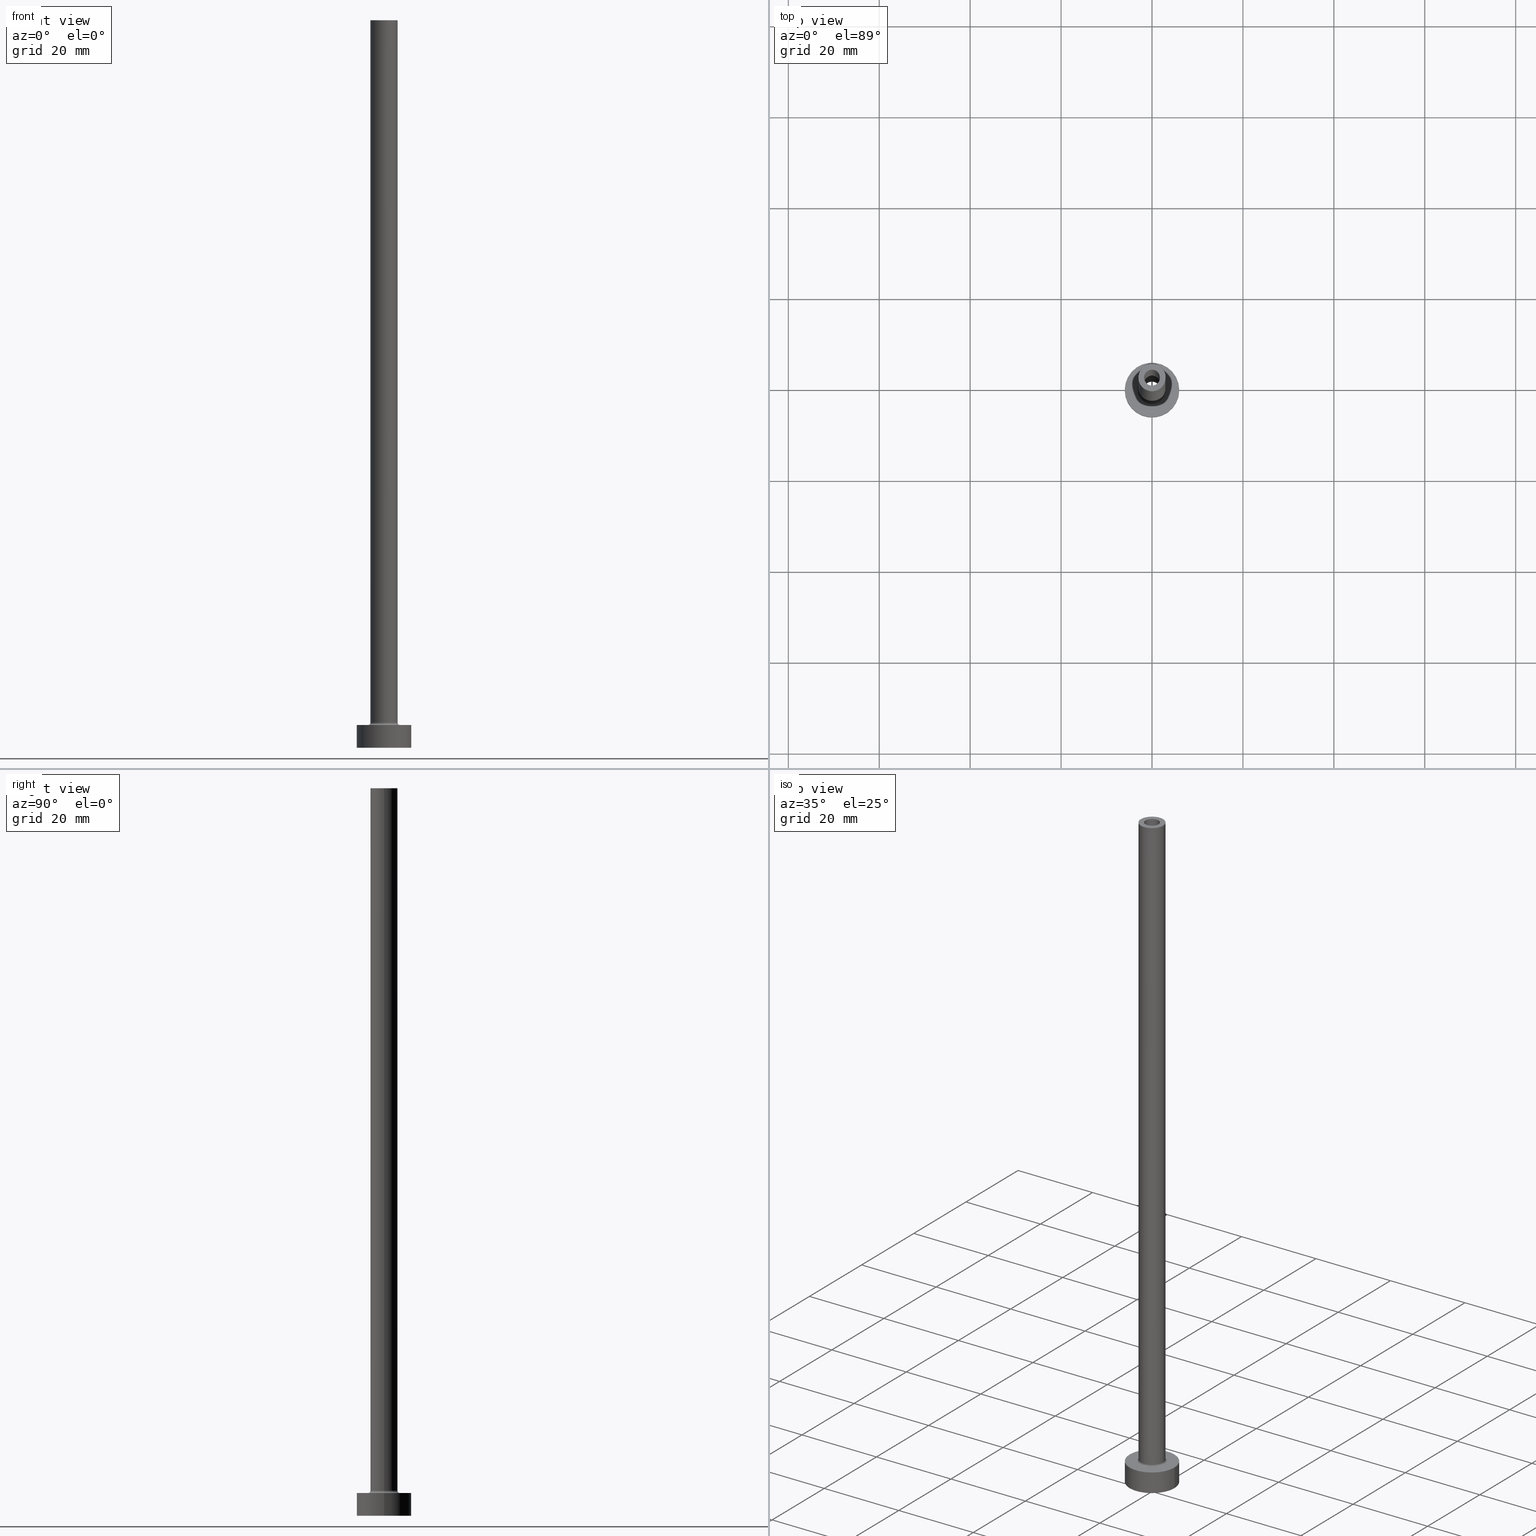
[diagram: canonical four-view strip — front | top / right | iso, engineering-drawing reading convention]
A machine part, canonical four-view strip (front | top / right | iso — engineering-drawing reading convention). The complete STEP part file that produces these views, byte-faithful:
ISO-10303-21;
HEADER;
FILE_DESCRIPTION (( 'STEP AP203' ),
    '1' );
FILE_NAME ('458b.STEP',
    '2023-02-13T17:51:36',
    ( '' ),
    ( '' ),
    'SwSTEP 2.0',
    'SolidWorks 2019',
    '' );
FILE_SCHEMA (( 'CONFIG_CONTROL_DESIGN' ));
ENDSEC;

DATA;
#1 = AXIS2_PLACEMENT_3D ( 'NONE', #309, #236, #19 ) ;
#2 = VERTEX_POINT ( 'NONE', #216 ) ;
#3 = CARTESIAN_POINT ( 'NONE',  ( -3.500000000000000444, 4.286263797015737088E-16, 5.500000000000005329 ) ) ;
#4 = EDGE_CURVE ( 'NONE', #240, #394, #8, .T. ) ;
#5 = DATE_TIME_ROLE ( 'creation_date' ) ;
#6 = DIRECTION ( 'NONE',  ( 0.000000000000000000, 0.000000000000000000, -1.000000000000000000 ) ) ;
#7 = CALENDAR_DATE ( 2023, 13, 2 ) ;
#8 = LINE ( 'NONE', #220, #386 ) ;
#9 = AXIS2_PLACEMENT_3D ( 'NONE', #444, #271, #241 ) ;
#10 = EDGE_CURVE ( 'NONE', #198, #45, #434, .T. ) ;
#11 = DATE_AND_TIME ( #429, #291 ) ;
#12 = CARTESIAN_POINT ( 'NONE',  ( 0.000000000000000000, 0.000000000000000000, 0.000000000000000000 ) ) ;
#13 = DIRECTION ( 'NONE',  ( -0.000000000000000000, -0.000000000000000000, -1.000000000000000000 ) ) ;
#14 = FACE_OUTER_BOUND ( 'NONE', #440, .T. ) ;
#15 = PRODUCT_DEFINITION_SHAPE ( 'NONE', 'NONE',  #420 ) ;
#16 = DIRECTION ( 'NONE',  ( 0.000000000000000000, 0.000000000000000000, 1.000000000000000000 ) ) ;
#17 = ORIENTED_EDGE ( 'NONE', *, *, #49, .F. ) ;
#18 = ADVANCED_FACE ( 'NONE', ( #329 ), #262, .T. ) ;
#19 = DIRECTION ( 'NONE',  ( 1.000000000000000000, 0.000000000000000000, -0.000000000000000000 ) ) ;
#20 = ORIENTED_EDGE ( 'NONE', *, *, #245, .F. ) ;
#21 = FACE_OUTER_BOUND ( 'NONE', #149, .T. ) ;
#22 = AXIS2_PLACEMENT_3D ( 'NONE', #409, #85, #50 ) ;
#23 = VERTEX_POINT ( 'NONE', #334 ) ;
#24 = EDGE_CURVE ( 'NONE', #2, #69, #443, .T. ) ;
#25 = DIRECTION ( 'NONE',  ( -1.000000000000000000, 0.000000000000000000, 0.000000000000000000 ) ) ;
#26 =( LENGTH_UNIT ( ) NAMED_UNIT ( * ) SI_UNIT ( .MILLI., .METRE. ) );
#27 = PRODUCT_RELATED_PRODUCT_CATEGORY ( 'detail', '', ( #124 ) ) ;
#28 = CARTESIAN_POINT ( 'NONE',  ( 3.500000000000000444, 0.000000000000000000, 5.500000000000005329 ) ) ;
#29 = CIRCLE ( 'NONE', #244, 1.750000000000000000 ) ;
#30 = DESIGN_CONTEXT ( 'detailed design', #80, 'design' ) ;
#31 = CARTESIAN_POINT ( 'NONE',  ( 0.000000000000000000, 0.000000000000000000, 5.000000000000000000 ) ) ;
#32 = ORIENTED_EDGE ( 'NONE', *, *, #264, .F. ) ;
#33 = CARTESIAN_POINT ( 'NONE',  ( -1.750000000000000000, 0.000000000000000000, 160.0000000000000000 ) ) ;
#34 = VERTEX_POINT ( 'NONE', #41 ) ;
#35 = CIRCLE ( 'NONE', #428, 6.000000000000000888 ) ;
#36 = DIRECTION ( 'NONE',  ( 0.000000000000000000, -1.000000000000000000, 0.000000000000000000 ) ) ;
#37 = APPROVAL ( #398, 'NEUR�EN�' ) ;
#38 = ORIENTED_EDGE ( 'NONE', *, *, #173, .F. ) ;
#39 = SHAPE_DEFINITION_REPRESENTATION ( #15, #131 ) ;
#40 = CIRCLE ( 'NONE', #107, 1.750000000000000000 ) ;
#41 = CARTESIAN_POINT ( 'NONE',  ( -1.750000000000000000, 0.000000000000000000, 115.0000000000000000 ) ) ;
#42 = PERSON_AND_ORGANIZATION ( #180, #123 ) ;
#43 = DIRECTION ( 'NONE',  ( 1.000000000000000000, 0.000000000000000000, 0.000000000000000000 ) ) ;
#44 = PERSON_AND_ORGANIZATION ( #180, #123 ) ;
#45 = VERTEX_POINT ( 'NONE', #402 ) ;
#46 = APPROVAL_ROLE ( '' ) ;
#47 = DIRECTION ( 'NONE',  ( -1.000000000000000000, 1.224646799147354440E-16, 0.000000000000000000 ) ) ;
#48 = DIRECTION ( 'NONE',  ( -0.000000000000000000, -0.000000000000000000, -1.000000000000000000 ) ) ;
#49 = EDGE_CURVE ( 'NONE', #282, #198, #302, .T. ) ;
#50 = DIRECTION ( 'NONE',  ( 1.000000000000000000, 0.000000000000000000, 0.000000000000000000 ) ) ;
#51 = DIRECTION ( 'NONE',  ( 1.000000000000000000, 0.000000000000000000, 0.000000000000000000 ) ) ;
#52 = AXIS2_PLACEMENT_3D ( 'NONE', #31, #319, #171 ) ;
#53 = DIRECTION ( 'NONE',  ( 1.000000000000000000, 0.000000000000000000, 0.000000000000000000 ) ) ;
#54 = VERTEX_POINT ( 'NONE', #287 ) ;
#55 = DIRECTION ( 'NONE',  ( 0.000000000000000000, 0.000000000000000000, 1.000000000000000000 ) ) ;
#56 = EDGE_CURVE ( 'NONE', #394, #413, #87, .T. ) ;
#57 = ORIENTED_EDGE ( 'NONE', *, *, #274, .T. ) ;
#58 = FACE_OUTER_BOUND ( 'NONE', #284, .T. ) ;
#59 = AXIS2_PLACEMENT_3D ( 'NONE', #299, #337, #51 ) ;
#60 = DIRECTION ( 'NONE',  ( -1.000000000000000000, 0.000000000000000000, 0.000000000000000000 ) ) ;
#61 = FACE_OUTER_BOUND ( 'NONE', #461, .T. ) ;
#62 = FACE_BOUND ( 'NONE', #209, .T. ) ;
#63 = EDGE_LOOP ( 'NONE', ( #17, #32, #365, #233 ) ) ;
#64 = AXIS2_PLACEMENT_3D ( 'NONE', #424, #322, #417 ) ;
#65 = AXIS2_PLACEMENT_3D ( 'NONE', #288, #360, #185 ) ;
#66 = DIRECTION ( 'NONE',  ( 0.000000000000000000, 0.000000000000000000, -1.000000000000000000 ) ) ;
#67 = ORIENTED_EDGE ( 'NONE', *, *, #184, .F. ) ;
#68 = CYLINDRICAL_SURFACE ( 'NONE', #367, 1.899999999999999911 ) ;
#69 = VERTEX_POINT ( 'NONE', #397 ) ;
#70 = EDGE_CURVE ( 'NONE', #69, #54, #155, .T. ) ;
#71 = APPROVAL_DATE_TIME ( #404, #438 ) ;
#72 = FACE_OUTER_BOUND ( 'NONE', #135, .T. ) ;
#73 = APPROVAL_ROLE ( '' ) ;
#74 = AXIS2_PLACEMENT_3D ( 'NONE', #355, #246, #387 ) ;
#75 = EDGE_LOOP ( 'NONE', ( #343, #175, #89, #373 ) ) ;
#76 = PERSON_AND_ORGANIZATION_ROLE ( 'design_supplier' ) ;
#77 = LINE ( 'NONE', #407, #298 ) ;
#78 = AXIS2_PLACEMENT_3D ( 'NONE', #153, #430, #43 ) ;
#79 = APPROVAL_STATUS ( 'not_yet_approved' ) ;
#80 = APPLICATION_CONTEXT ( 'configuration controlled 3d designs of mechanical parts and assemblies' ) ;
#81 = ADVANCED_FACE ( 'NONE', ( #72 ), #225, .F. ) ;
#82 = ORIENTED_EDGE ( 'NONE', *, *, #230, .F. ) ;
#83 = CIRCLE ( 'NONE', #202, 1.750000000000000000 ) ;
#84 = DIRECTION ( 'NONE',  ( -0.000000000000000000, -0.000000000000000000, -1.000000000000000000 ) ) ;
#85 = DIRECTION ( 'NONE',  ( 0.000000000000000000, 0.000000000000000000, 1.000000000000000000 ) ) ;
#86 = ADVANCED_FACE ( 'NONE', ( #433 ), #328, .F. ) ;
#87 = CIRCLE ( 'NONE', #78, 1.899999999999999911 ) ;
#88 = PLANE ( 'NONE',  #100 ) ;
#89 = ORIENTED_EDGE ( 'NONE', *, *, #350, .T. ) ;
#90 = FACE_BOUND ( 'NONE', #172, .T. ) ;
#91 = AXIS2_PLACEMENT_3D ( 'NONE', #161, #301, #411 ) ;
#92 = LOCAL_TIME ( 18, 51, 36.00000000000000000, #181 ) ;
#93 = CC_DESIGN_PERSON_AND_ORGANIZATION_ASSIGNMENT ( #332, #215, ( #448 ) ) ;
#94 = CYLINDRICAL_SURFACE ( 'NONE', #250, 3.000000000000000444 ) ;
#95 = ORIENTED_EDGE ( 'NONE', *, *, #205, .F. ) ;
#96 = CARTESIAN_POINT ( 'NONE',  ( 6.000000000000000888, 7.347880794884120722E-16, 0.000000000000000000 ) ) ;
#97 = EDGE_CURVE ( 'NONE', #200, #133, #35, .T. ) ;
#98 = ORIENTED_EDGE ( 'NONE', *, *, #310, .T. ) ;
#99 = FACE_BOUND ( 'NONE', #446, .T. ) ;
#100 = AXIS2_PLACEMENT_3D ( 'NONE', #335, #269, #159 ) ;
#101 = LINE ( 'NONE', #33, #158 ) ;
#102 = DIRECTION ( 'NONE',  ( -1.000000000000000000, 0.000000000000000000, 0.000000000000000000 ) ) ;
#103 = EDGE_CURVE ( 'NONE', #2, #282, #431, .T. ) ;
#104 = FACE_OUTER_BOUND ( 'NONE', #305, .T. ) ;
#105 = ORIENTED_EDGE ( 'NONE', *, *, #144, .F. ) ;
#106 = CIRCLE ( 'NONE', #9, 6.000000000000000888 ) ;
#107 = AXIS2_PLACEMENT_3D ( 'NONE', #378, #414, #304 ) ;
#108 = LINE ( 'NONE', #247, #366 ) ;
#109 = ORIENTED_EDGE ( 'NONE', *, *, #264, .T. ) ;
#110 = APPLICATION_PROTOCOL_DEFINITION ( 'international standard', 'config_control_design', 1994, #330 ) ;
#111 = ORIENTED_EDGE ( 'NONE', *, *, #191, .T. ) ;
#112 = EDGE_CURVE ( 'NONE', #356, #133, #77, .T. ) ;
#113 = PERSON_AND_ORGANIZATION ( #180, #123 ) ;
#114 = DIRECTION ( 'NONE',  ( 0.000000000000000000, 0.000000000000000000, -1.000000000000000000 ) ) ;
#115 = MECHANICAL_CONTEXT ( 'NONE', #330, 'mechanical' ) ;
#116 = CIRCLE ( 'NONE', #324, 1.899999999999999911 ) ;
#117 = CARTESIAN_POINT ( 'NONE',  ( 0.000000000000000000, 0.000000000000000000, 120.3740115370177648 ) ) ;
#118 = DATE_AND_TIME ( #148, #383 ) ;
#119 = CARTESIAN_POINT ( 'NONE',  ( 0.000000000000000000, 0.000000000000000000, 160.0000000000000000 ) ) ;
#120 = CARTESIAN_POINT ( 'NONE',  ( 6.000000000000000888, 7.347880794884120722E-16, 5.000000000000000000 ) ) ;
#121 = VECTOR ( 'NONE', #48, 1000.000000000000000 ) ;
#122 = DIRECTION ( 'NONE',  ( 1.224646799147353207E-16, 1.000000000000000000, -0.000000000000000000 ) ) ;
#123 = ORGANIZATION ( 'NEUR�EN�', 'NEUR�EN�', '' ) ;
#124 = PRODUCT ( '458b', '458b', '', ( #115 ) ) ;
#125 = DIRECTION ( 'NONE',  ( 1.000000000000000000, 0.000000000000000000, 0.000000000000000000 ) ) ;
#126 = ADVANCED_FACE ( 'NONE', ( #363 ), #235, .F. ) ;
#127 = AXIS2_PLACEMENT_3D ( 'NONE', #151, #13, #192 ) ;
#128 = CARTESIAN_POINT ( 'NONE',  ( 0.000000000000000000, 0.000000000000000000, 115.0000000000000000 ) ) ;
#129 = EDGE_CURVE ( 'NONE', #213, #200, #326, .T. ) ;
#130 = CARTESIAN_POINT ( 'NONE',  ( 0.000000000000000000, 0.000000000000000000, 160.0000000000000000 ) ) ;
#131 = ADVANCED_BREP_SHAPE_REPRESENTATION ( '458b', ( #221, #65 ), #314 ) ;
#132 = CIRCLE ( 'NONE', #359, 1.899999999999999911 ) ;
#133 = VERTEX_POINT ( 'NONE', #199 ) ;
#134 = CARTESIAN_POINT ( 'NONE',  ( 0.000000000000000000, 0.000000000000000000, 160.0000000000000000 ) ) ;
#135 = EDGE_LOOP ( 'NONE', ( #333, #303, #223, #352 ) ) ;
#136 = CARTESIAN_POINT ( 'NONE',  ( -6.000000000000000888, 0.000000000000000000, 5.000000000000000000 ) ) ;
#137 = ADVANCED_FACE ( 'NONE', ( #410 ), #94, .T. ) ;
#138 = CARTESIAN_POINT ( 'NONE',  ( 0.000000000000000000, 0.000000000000000000, 5.000000000000000000 ) ) ;
#139 = AXIS2_PLACEMENT_3D ( 'NONE', #228, #369, #179 ) ;
#140 = DIRECTION ( 'NONE',  ( 1.000000000000000000, 0.000000000000000000, 0.000000000000000000 ) ) ;
#141 = EDGE_CURVE ( 'NONE', #413, #394, #116, .T. ) ;
#142 = AXIS2_PLACEMENT_3D ( 'NONE', #117, #263, #293 ) ;
#143 = ORIENTED_EDGE ( 'NONE', *, *, #321, .F. ) ;
#144 = EDGE_CURVE ( 'NONE', #45, #198, #331, .T. ) ;
#145 = CARTESIAN_POINT ( 'NONE',  ( -1.899999999999999911, 0.000000000000000000, 115.0000000000000000 ) ) ;
#146 = ORIENTED_EDGE ( 'NONE', *, *, #129, .T. ) ;
#147 = TOROIDAL_SURFACE ( 'NONE', #408, 3.500000000000000444, 0.5000000000000000000 ) ;
#148 = CALENDAR_DATE ( 2023, 13, 2 ) ;
#149 = EDGE_LOOP ( 'NONE', ( #379, #300, #249, #237 ) ) ;
#150 = PERSON_AND_ORGANIZATION_ROLE ( 'creator' ) ;
#151 = CARTESIAN_POINT ( 'NONE',  ( 0.000000000000000000, 0.000000000000000000, 5.000000000000000000 ) ) ;
#152 =( NAMED_UNIT ( * ) SI_UNIT ( $, .STERADIAN. ) SOLID_ANGLE_UNIT ( ) );
#153 = CARTESIAN_POINT ( 'NONE',  ( 0.000000000000000000, 0.000000000000000000, 0.000000000000000000 ) ) ;
#154 = APPROVAL_DATE_TIME ( #401, #405 ) ;
#155 = LINE ( 'NONE', #256, #239 ) ;
#156 = ORIENTED_EDGE ( 'NONE', *, *, #230, .T. ) ;
#157 = CARTESIAN_POINT ( 'NONE',  ( 0.000000000000000000, 0.000000000000000000, 160.0000000000000000 ) ) ;
#158 = VECTOR ( 'NONE', #311, 1000.000000000000000 ) ;
#159 = DIRECTION ( 'NONE',  ( 1.000000000000000000, 0.000000000000000000, -0.000000000000000000 ) ) ;
#160 = ORIENTED_EDGE ( 'NONE', *, *, #112, .F. ) ;
#161 = CARTESIAN_POINT ( 'NONE',  ( 0.000000000000000000, 0.000000000000000000, 5.000000000000000000 ) ) ;
#162 = EDGE_LOOP ( 'NONE', ( #177, #280, #423, #377 ) ) ;
#163 = CARTESIAN_POINT ( 'NONE',  ( -3.000000000000000444, 0.000000000000000000, 5.500000000000005329 ) ) ;
#164 = ORIENTED_EDGE ( 'NONE', *, *, #70, .T. ) ;
#165 = CARTESIAN_POINT ( 'NONE',  ( 6.000000000000000888, 7.347880794884120722E-16, 5.000000000000000000 ) ) ;
#166 = APPROVAL_PERSON_ORGANIZATION ( #113, #37, #73 ) ;
#167 = APPROVAL_PERSON_ORGANIZATION ( #44, #405, #46 ) ;
#168 = VERTEX_POINT ( 'NONE', #340 ) ;
#169 = PLANE ( 'NONE',  #1 ) ;
#170 = LOCAL_TIME ( 18, 51, 36.00000000000000000, #362 ) ;
#171 = DIRECTION ( 'NONE',  ( 1.000000000000000000, 0.000000000000000000, -0.000000000000000000 ) ) ;
#172 = EDGE_LOOP ( 'NONE', ( #67, #38 ) ) ;
#173 = EDGE_CURVE ( 'NONE', #23, #168, #40, .T. ) ;
#174 = DIRECTION ( 'NONE',  ( 0.000000000000000000, 0.000000000000000000, -1.000000000000000000 ) ) ;
#175 = ORIENTED_EDGE ( 'NONE', *, *, #245, .T. ) ;
#176 = DIRECTION ( 'NONE',  ( 1.000000000000000000, 0.000000000000000000, 0.000000000000000000 ) ) ;
#177 = ORIENTED_EDGE ( 'NONE', *, *, #129, .F. ) ;
#178 = CIRCLE ( 'NONE', #374, 3.000000000000000444 ) ;
#179 = DIRECTION ( 'NONE',  ( 1.000000000000000000, 0.000000000000000000, 0.000000000000000000 ) ) ;
#180 = PERSON ( 'NEUR�EN�', 'NEUR�EN�', 'NEUR�EN�', ('NEUR�EN�'), ('NEUR�EN�'), ('NEUR�EN�') ) ;
#181 = COORDINATED_UNIVERSAL_TIME_OFFSET ( 1, 0, .AHEAD. ) ;
#182 = AXIS2_PLACEMENT_3D ( 'NONE', #157, #297, #361 ) ;
#183 = DIRECTION ( 'NONE',  ( -0.000000000000000000, -0.000000000000000000, -1.000000000000000000 ) ) ;
#184 = EDGE_CURVE ( 'NONE', #168, #23, #83, .T. ) ;
#185 = DIRECTION ( 'NONE',  ( 1.000000000000000000, 0.000000000000000000, 0.000000000000000000 ) ) ;
#186 = DIRECTION ( 'NONE',  ( 0.000000000000000000, 0.000000000000000000, 1.000000000000000000 ) ) ;
#187 = PERSON_AND_ORGANIZATION_ROLE ( 'design_owner' ) ;
#188 = CIRCLE ( 'NONE', #74, 6.000000000000000888 ) ;
#189 = DIRECTION ( 'NONE',  ( -0.000000000000000000, -0.000000000000000000, -1.000000000000000000 ) ) ;
#190 = ORIENTED_EDGE ( 'NONE', *, *, #173, .T. ) ;
#191 = EDGE_CURVE ( 'NONE', #69, #2, #400, .T. ) ;
#192 = DIRECTION ( 'NONE',  ( 1.000000000000000000, 0.000000000000000000, 0.000000000000000000 ) ) ;
#193 = CLOSED_SHELL ( 'NONE', ( #204, #81, #403, #18, #415, #285, #435, #296, #137, #218, #126, #460, #258, #86 ) ) ;
#194 = FACE_BOUND ( 'NONE', #357, .T. ) ;
#195 = DIRECTION ( 'NONE',  ( 1.000000000000000000, 0.000000000000000000, 0.000000000000000000 ) ) ;
#196 = ORIENTED_EDGE ( 'NONE', *, *, #10, .T. ) ;
#197 = CARTESIAN_POINT ( 'NONE',  ( 0.000000000000000000, 0.000000000000000000, 0.000000000000000000 ) ) ;
#198 = VERTEX_POINT ( 'NONE', #306 ) ;
#199 = CARTESIAN_POINT ( 'NONE',  ( -6.000000000000000888, 0.000000000000000000, 0.000000000000000000 ) ) ;
#200 = VERTEX_POINT ( 'NONE', #96 ) ;
#201 = DIRECTION ( 'NONE',  ( -0.000000000000000000, -0.000000000000000000, -1.000000000000000000 ) ) ;
#202 = AXIS2_PLACEMENT_3D ( 'NONE', #134, #55, #376 ) ;
#203 = CARTESIAN_POINT ( 'NONE',  ( -1.899999999999999911, 0.000000000000000000, 0.000000000000000000 ) ) ;
#204 = ADVANCED_FACE ( 'NONE', ( #21 ), #370, .F. ) ;
#205 = EDGE_CURVE ( 'NONE', #213, #356, #106, .T. ) ;
#206 = DIRECTION ( 'NONE',  ( 0.000000000000000000, 0.000000000000000000, -1.000000000000000000 ) ) ;
#207 = ORIENTED_EDGE ( 'NONE', *, *, #24, .F. ) ;
#208 = CIRCLE ( 'NONE', #22, 1.899999999999999911 ) ;
#209 = EDGE_LOOP ( 'NONE', ( #316, #272 ) ) ;
#210 = CC_DESIGN_PERSON_AND_ORGANIZATION_ASSIGNMENT ( #42, #150, ( #227 ) ) ;
#211 = AXIS2_PLACEMENT_3D ( 'NONE', #3, #122, #47 ) ;
#212 =( NAMED_UNIT ( * ) PLANE_ANGLE_UNIT ( ) SI_UNIT ( $, .RADIAN. ) );
#213 = VERTEX_POINT ( 'NONE', #165 ) ;
#214 = DATE_AND_TIME ( #317, #92 ) ;
#215 = PERSON_AND_ORGANIZATION_ROLE ( 'classification_officer' ) ;
#216 = CARTESIAN_POINT ( 'NONE',  ( -3.000000000000000444, 0.000000000000000000, 160.0000000000000000 ) ) ;
#217 = AXIS2_PLACEMENT_3D ( 'NONE', #28, #36, #348 ) ;
#218 = ADVANCED_FACE ( 'NONE', ( #90, #58 ), #169, .T. ) ;
#219 = APPLICATION_PROTOCOL_DEFINITION ( 'international standard', 'config_control_design', 1994, #80 ) ;
#220 = CARTESIAN_POINT ( 'NONE',  ( 1.899999999999999911, 2.326828918379971365E-16, 120.3740115370177648 ) ) ;
#221 = MANIFOLD_SOLID_BREP ( 'Odebrat vysunut�m4', #193 ) ;
#222 = PERSON_AND_ORGANIZATION ( #180, #123 ) ;
#223 = ORIENTED_EDGE ( 'NONE', *, *, #56, .T. ) ;
#224 = APPROVAL_STATUS ( 'not_yet_approved' ) ;
#225 = CYLINDRICAL_SURFACE ( 'NONE', #142, 1.899999999999999911 ) ;
#226 = ORIENTED_EDGE ( 'NONE', *, *, #380, .F. ) ;
#227 = PRODUCT_DEFINITION_FORMATION_WITH_SPECIFIED_SOURCE ( 'LIBOVOLN�', '', #124, .NOT_KNOWN. ) ;
#228 = CARTESIAN_POINT ( 'NONE',  ( 0.000000000000000000, 0.000000000000000000, 5.500000000000005329 ) ) ;
#229 = CC_DESIGN_PERSON_AND_ORGANIZATION_ASSIGNMENT ( #259, #187, ( #124 ) ) ;
#230 = EDGE_CURVE ( 'NONE', #282, #54, #178, .T. ) ;
#231 = DIRECTION ( 'NONE',  ( -1.000000000000000000, 0.000000000000000000, 0.000000000000000000 ) ) ;
#232 = VECTOR ( 'NONE', #189, 1000.000000000000000 ) ;
#233 = ORIENTED_EDGE ( 'NONE', *, *, #10, .F. ) ;
#234 = DIRECTION ( 'NONE',  ( 0.000000000000000000, 0.000000000000000000, 1.000000000000000000 ) ) ;
#235 = TOROIDAL_SURFACE ( 'NONE', #139, 3.500000000000000444, 0.5000000000000000000 ) ;
#236 = DIRECTION ( 'NONE',  ( 0.000000000000000000, 0.000000000000000000, 1.000000000000000000 ) ) ;
#237 = ORIENTED_EDGE ( 'NONE', *, *, #338, .F. ) ;
#238 = DIRECTION ( 'NONE',  ( 1.000000000000000000, 0.000000000000000000, 0.000000000000000000 ) ) ;
#239 = VECTOR ( 'NONE', #183, 1000.000000000000000 ) ;
#240 = VERTEX_POINT ( 'NONE', #268 ) ;
#241 = DIRECTION ( 'NONE',  ( 1.000000000000000000, 0.000000000000000000, 0.000000000000000000 ) ) ;
#242 = ORIENTED_EDGE ( 'NONE', *, *, #49, .T. ) ;
#243 = LINE ( 'NONE', #248, #447 ) ;
#244 = AXIS2_PLACEMENT_3D ( 'NONE', #128, #16, #53 ) ;
#245 = EDGE_CURVE ( 'NONE', #240, #371, #208, .T. ) ;
#246 = DIRECTION ( 'NONE',  ( 0.000000000000000000, 0.000000000000000000, 1.000000000000000000 ) ) ;
#247 = CARTESIAN_POINT ( 'NONE',  ( -1.899999999999999911, 0.000000000000000000, 120.3740115370177648 ) ) ;
#248 = CARTESIAN_POINT ( 'NONE',  ( 1.750000000000000000, 2.143131898507867804E-16, 160.0000000000000000 ) ) ;
#249 = ORIENTED_EDGE ( 'NONE', *, *, #274, .F. ) ;
#250 = AXIS2_PLACEMENT_3D ( 'NONE', #449, #201, #231 ) ;
#251 = CC_DESIGN_APPROVAL ( #37, ( #448 ) ) ;
#252 = CARTESIAN_POINT ( 'NONE',  ( 0.000000000000000000, 0.000000000000000000, 5.500000000000005329 ) ) ;
#253 = ORIENTED_EDGE ( 'NONE', *, *, #70, .F. ) ;
#254 = PERSON_AND_ORGANIZATION_ROLE ( 'creator' ) ;
#255 = EDGE_LOOP ( 'NONE', ( #95, #146, #399, #160 ) ) ;
#256 = CARTESIAN_POINT ( 'NONE',  ( 3.000000000000000444, 3.673940397442060361E-16, 160.0000000000000000 ) ) ;
#257 = AXIS2_PLACEMENT_3D ( 'NONE', #138, #279, #102 ) ;
#258 = ADVANCED_FACE ( 'NONE', ( #194, #14 ), #88, .F. ) ;
#259 = PERSON_AND_ORGANIZATION ( #180, #123 ) ;
#260 = CARTESIAN_POINT ( 'NONE',  ( -3.000000000000000444, 0.000000000000000000, 160.0000000000000000 ) ) ;
#261 = APPROVAL_ROLE ( '' ) ;
#262 = CYLINDRICAL_SURFACE ( 'NONE', #182, 3.000000000000000444 ) ;
#263 = DIRECTION ( 'NONE',  ( 0.000000000000000000, 0.000000000000000000, -1.000000000000000000 ) ) ;
#264 = EDGE_CURVE ( 'NONE', #54, #282, #439, .T. ) ;
#265 = AXIS2_PLACEMENT_3D ( 'NONE', #281, #421, #351 ) ;
#266 = CC_DESIGN_DATE_AND_TIME_ASSIGNMENT ( #11, #283, ( #448 ) ) ;
#267 = LOCAL_TIME ( 18, 51, 36.00000000000000000, #325 ) ;
#268 = CARTESIAN_POINT ( 'NONE',  ( 1.899999999999999911, 2.326828918379971365E-16, 115.0000000000000000 ) ) ;
#269 = DIRECTION ( 'NONE',  ( 0.000000000000000000, 0.000000000000000000, 1.000000000000000000 ) ) ;
#270 = DIRECTION ( 'NONE',  ( -0.000000000000000000, -0.000000000000000000, -1.000000000000000000 ) ) ;
#271 = DIRECTION ( 'NONE',  ( 0.000000000000000000, 0.000000000000000000, 1.000000000000000000 ) ) ;
#272 = ORIENTED_EDGE ( 'NONE', *, *, #56, .F. ) ;
#273 = DIRECTION ( 'NONE',  ( -0.000000000000000000, -0.000000000000000000, -1.000000000000000000 ) ) ;
#274 = EDGE_CURVE ( 'NONE', #34, #416, #29, .T. ) ;
#275 = ORIENTED_EDGE ( 'NONE', *, *, #24, .T. ) ;
#276 = FACE_OUTER_BOUND ( 'NONE', #255, .T. ) ;
#277 = EDGE_CURVE ( 'NONE', #356, #213, #290, .T. ) ;
#278 = PLANE ( 'NONE',  #64 ) ;
#279 = DIRECTION ( 'NONE',  ( -0.000000000000000000, -0.000000000000000000, -1.000000000000000000 ) ) ;
#280 = ORIENTED_EDGE ( 'NONE', *, *, #277, .F. ) ;
#281 = CARTESIAN_POINT ( 'NONE',  ( 0.000000000000000000, 0.000000000000000000, 5.000000000000000000 ) ) ;
#282 = VERTEX_POINT ( 'NONE', #163 ) ;
#283 = DATE_TIME_ROLE ( 'classification_date' ) ;
#284 = EDGE_LOOP ( 'NONE', ( #275, #111 ) ) ;
#285 = ADVANCED_FACE ( 'NONE', ( #445 ), #412, .T. ) ;
#286 = COORDINATED_UNIVERSAL_TIME_OFFSET ( 1, 0, .AHEAD. ) ;
#287 = CARTESIAN_POINT ( 'NONE',  ( 3.000000000000000444, 3.673940397442060361E-16, 5.500000000000005329 ) ) ;
#288 = CARTESIAN_POINT ( 'NONE',  ( 0.000000000000000000, 0.000000000000000000, 0.000000000000000000 ) ) ;
#289 = DIRECTION ( 'NONE',  ( 1.000000000000000000, 0.000000000000000000, 0.000000000000000000 ) ) ;
#290 = CIRCLE ( 'NONE', #91, 6.000000000000000888 ) ;
#291 = LOCAL_TIME ( 18, 51, 36.00000000000000000, #286 ) ;
#292 = PERSON_AND_ORGANIZATION ( #180, #123 ) ;
#293 = DIRECTION ( 'NONE',  ( -1.000000000000000000, 0.000000000000000000, 0.000000000000000000 ) ) ;
#294 = AXIS2_PLACEMENT_3D ( 'NONE', #119, #6, #436 ) ;
#295 = DIRECTION ( 'NONE',  ( 0.000000000000000000, 0.000000000000000000, 1.000000000000000000 ) ) ;
#296 = ADVANCED_FACE ( 'NONE', ( #62, #390 ), #278, .F. ) ;
#297 = DIRECTION ( 'NONE',  ( -0.000000000000000000, -0.000000000000000000, -1.000000000000000000 ) ) ;
#298 = VECTOR ( 'NONE', #84, 1000.000000000000000 ) ;
#299 = CARTESIAN_POINT ( 'NONE',  ( 0.000000000000000000, 0.000000000000000000, 5.500000000000005329 ) ) ;
#300 = ORIENTED_EDGE ( 'NONE', *, *, #395, .T. ) ;
#301 = DIRECTION ( 'NONE',  ( 0.000000000000000000, 0.000000000000000000, 1.000000000000000000 ) ) ;
#302 = CIRCLE ( 'NONE', #211, 0.4999999999999995559 ) ;
#303 = ORIENTED_EDGE ( 'NONE', *, *, #4, .T. ) ;
#304 = DIRECTION ( 'NONE',  ( 1.000000000000000000, 0.000000000000000000, 0.000000000000000000 ) ) ;
#305 = EDGE_LOOP ( 'NONE', ( #308, #458 ) ) ;
#306 = CARTESIAN_POINT ( 'NONE',  ( -3.500000000000000444, 4.286263797015737088E-16, 5.000000000000002665 ) ) ;
#307 = CC_DESIGN_APPROVAL ( #405, ( #420 ) ) ;
#308 = ORIENTED_EDGE ( 'NONE', *, *, #277, .T. ) ;
#309 = CARTESIAN_POINT ( 'NONE',  ( 0.000000000000000000, 0.000000000000000000, 160.0000000000000000 ) ) ;
#310 = EDGE_CURVE ( 'NONE', #416, #34, #425, .T. ) ;
#311 = DIRECTION ( 'NONE',  ( 0.000000000000000000, 0.000000000000000000, -1.000000000000000000 ) ) ;
#312 = APPROVAL_DATE_TIME ( #214, #37 ) ;
#313 = DIRECTION ( 'NONE',  ( 1.000000000000000000, 0.000000000000000000, 0.000000000000000000 ) ) ;
#314 =( GEOMETRIC_REPRESENTATION_CONTEXT ( 3 ) GLOBAL_UNCERTAINTY_ASSIGNED_CONTEXT ( ( #354 ) ) GLOBAL_UNIT_ASSIGNED_CONTEXT ( ( #26, #212, #152 ) ) REPRESENTATION_CONTEXT ( 'NONE', 'WORKASPACE' ) );
#315 = CARTESIAN_POINT ( 'NONE',  ( 0.000000000000000000, 0.000000000000000000, 120.3740115370177648 ) ) ;
#316 = ORIENTED_EDGE ( 'NONE', *, *, #141, .F. ) ;
#317 = CALENDAR_DATE ( 2023, 13, 2 ) ;
#318 = CC_DESIGN_DATE_AND_TIME_ASSIGNMENT ( #118, #5, ( #420 ) ) ;
#319 = DIRECTION ( 'NONE',  ( 0.000000000000000000, 0.000000000000000000, 1.000000000000000000 ) ) ;
#320 = ORIENTED_EDGE ( 'NONE', *, *, #103, .T. ) ;
#321 = EDGE_CURVE ( 'NONE', #371, #240, #132, .T. ) ;
#322 = DIRECTION ( 'NONE',  ( 0.000000000000000000, 0.000000000000000000, 1.000000000000000000 ) ) ;
#323 = ORIENTED_EDGE ( 'NONE', *, *, #97, .F. ) ;
#324 = AXIS2_PLACEMENT_3D ( 'NONE', #197, #270, #238 ) ;
#325 = COORDINATED_UNIVERSAL_TIME_OFFSET ( 1, 0, .AHEAD. ) ;
#326 = LINE ( 'NONE', #120, #121 ) ;
#327 = PERSON_AND_ORGANIZATION ( #180, #123 ) ;
#328 = CYLINDRICAL_SURFACE ( 'NONE', #294, 1.750000000000000000 ) ;
#329 = FACE_OUTER_BOUND ( 'NONE', #341, .T. ) ;
#330 = APPLICATION_CONTEXT ( 'configuration controlled 3d designs of mechanical parts and assemblies' ) ;
#331 = CIRCLE ( 'NONE', #382, 3.500000000000000444 ) ;
#332 = PERSON_AND_ORGANIZATION ( #180, #123 ) ;
#333 = ORIENTED_EDGE ( 'NONE', *, *, #321, .T. ) ;
#334 = CARTESIAN_POINT ( 'NONE',  ( 1.750000000000000000, 2.143131898507867804E-16, 160.0000000000000000 ) ) ;
#335 = CARTESIAN_POINT ( 'NONE',  ( 0.000000000000000000, 0.000000000000000000, 115.0000000000000000 ) ) ;
#336 = ORIENTED_EDGE ( 'NONE', *, *, #395, .F. ) ;
#337 = DIRECTION ( 'NONE',  ( 0.000000000000000000, 0.000000000000000000, 1.000000000000000000 ) ) ;
#338 = EDGE_CURVE ( 'NONE', #168, #34, #101, .T. ) ;
#339 = EDGE_LOOP ( 'NONE', ( #336, #190, #426, #389 ) ) ;
#340 = CARTESIAN_POINT ( 'NONE',  ( -1.750000000000000000, 0.000000000000000000, 160.0000000000000000 ) ) ;
#341 = EDGE_LOOP ( 'NONE', ( #442, #164, #109, #368 ) ) ;
#342 = CARTESIAN_POINT ( 'NONE',  ( 0.000000000000000000, 0.000000000000000000, 5.000000000000000000 ) ) ;
#343 = ORIENTED_EDGE ( 'NONE', *, *, #4, .F. ) ;
#344 = CC_DESIGN_PERSON_AND_ORGANIZATION_ASSIGNMENT ( #222, #76, ( #227 ) ) ;
#345 = AXIS2_PLACEMENT_3D ( 'NONE', #372, #234, #125 ) ;
#346 = APPROVAL_PERSON_ORGANIZATION ( #327, #438, #261 ) ;
#347 = DIRECTION ( 'NONE',  ( 0.000000000000000000, 0.000000000000000000, -1.000000000000000000 ) ) ;
#348 = DIRECTION ( 'NONE',  ( 0.000000000000000000, 0.000000000000000000, -1.000000000000000000 ) ) ;
#349 = CYLINDRICAL_SURFACE ( 'NONE', #257, 6.000000000000000888 ) ;
#350 = EDGE_CURVE ( 'NONE', #371, #413, #108, .T. ) ;
#351 = DIRECTION ( 'NONE',  ( -1.000000000000000000, 0.000000000000000000, 0.000000000000000000 ) ) ;
#352 = ORIENTED_EDGE ( 'NONE', *, *, #350, .F. ) ;
#353 = EDGE_CURVE ( 'NONE', #54, #45, #391, .T. ) ;
#354 = UNCERTAINTY_MEASURE_WITH_UNIT (LENGTH_MEASURE( 1.000000000000000082E-05 ), #26, 'distance_accuracy_value', 'NONE');
#355 = CARTESIAN_POINT ( 'NONE',  ( 0.000000000000000000, 0.000000000000000000, 0.000000000000000000 ) ) ;
#356 = VERTEX_POINT ( 'NONE', #136 ) ;
#357 = EDGE_LOOP ( 'NONE', ( #57, #98 ) ) ;
#358 = ORIENTED_EDGE ( 'NONE', *, *, #353, .F. ) ;
#359 = AXIS2_PLACEMENT_3D ( 'NONE', #456, #459, #176 ) ;
#360 = DIRECTION ( 'NONE',  ( 0.000000000000000000, 0.000000000000000000, 1.000000000000000000 ) ) ;
#361 = DIRECTION ( 'NONE',  ( -1.000000000000000000, 0.000000000000000000, 0.000000000000000000 ) ) ;
#362 = COORDINATED_UNIVERSAL_TIME_OFFSET ( 1, 0, .AHEAD. ) ;
#363 = FACE_OUTER_BOUND ( 'NONE', #63, .T. ) ;
#364 = SECURITY_CLASSIFICATION_LEVEL ( 'unclassified' ) ;
#365 = ORIENTED_EDGE ( 'NONE', *, *, #353, .T. ) ;
#366 = VECTOR ( 'NONE', #174, 1000.000000000000000 ) ;
#367 = AXIS2_PLACEMENT_3D ( 'NONE', #315, #66, #60 ) ;
#368 = ORIENTED_EDGE ( 'NONE', *, *, #103, .F. ) ;
#369 = DIRECTION ( 'NONE',  ( 0.000000000000000000, 0.000000000000000000, 1.000000000000000000 ) ) ;
#370 = CYLINDRICAL_SURFACE ( 'NONE', #454, 1.750000000000000000 ) ;
#371 = VERTEX_POINT ( 'NONE', #145 ) ;
#372 = CARTESIAN_POINT ( 'NONE',  ( 0.000000000000000000, 0.000000000000000000, 160.0000000000000000 ) ) ;
#373 = ORIENTED_EDGE ( 'NONE', *, *, #141, .T. ) ;
#374 = AXIS2_PLACEMENT_3D ( 'NONE', #451, #441, #195 ) ;
#375 = CC_DESIGN_APPROVAL ( #438, ( #227 ) ) ;
#376 = DIRECTION ( 'NONE',  ( 1.000000000000000000, 0.000000000000000000, 0.000000000000000000 ) ) ;
#377 = ORIENTED_EDGE ( 'NONE', *, *, #380, .T. ) ;
#378 = CARTESIAN_POINT ( 'NONE',  ( 0.000000000000000000, 0.000000000000000000, 160.0000000000000000 ) ) ;
#379 = ORIENTED_EDGE ( 'NONE', *, *, #184, .T. ) ;
#380 = EDGE_CURVE ( 'NONE', #133, #200, #188, .T. ) ;
#381 = DIRECTION ( 'NONE',  ( 1.000000000000000000, 0.000000000000000000, 0.000000000000000000 ) ) ;
#382 = AXIS2_PLACEMENT_3D ( 'NONE', #342, #273, #381 ) ;
#383 = LOCAL_TIME ( 18, 51, 36.00000000000000000, #432 ) ;
#384 = FACE_OUTER_BOUND ( 'NONE', #75, .T. ) ;
#385 = CARTESIAN_POINT ( 'NONE',  ( 1.899999999999999911, 2.326828918379971365E-16, 0.000000000000000000 ) ) ;
#386 = VECTOR ( 'NONE', #114, 1000.000000000000000 ) ;
#387 = DIRECTION ( 'NONE',  ( 1.000000000000000000, 0.000000000000000000, 0.000000000000000000 ) ) ;
#388 = CC_DESIGN_PERSON_AND_ORGANIZATION_ASSIGNMENT ( #292, #254, ( #420 ) ) ;
#389 = ORIENTED_EDGE ( 'NONE', *, *, #310, .F. ) ;
#390 = FACE_OUTER_BOUND ( 'NONE', #427, .T. ) ;
#391 = CIRCLE ( 'NONE', #217, 0.5000000000000004441 ) ;
#392 = EDGE_LOOP ( 'NONE', ( #253, #207, #320, #156 ) ) ;
#393 = PLANE ( 'NONE',  #52 ) ;
#394 = VERTEX_POINT ( 'NONE', #385 ) ;
#395 = EDGE_CURVE ( 'NONE', #23, #416, #243, .T. ) ;
#396 = CALENDAR_DATE ( 2023, 13, 2 ) ;
#397 = CARTESIAN_POINT ( 'NONE',  ( 3.000000000000000444, 3.673940397442060361E-16, 160.0000000000000000 ) ) ;
#398 = APPROVAL_STATUS ( 'not_yet_approved' ) ;
#399 = ORIENTED_EDGE ( 'NONE', *, *, #97, .T. ) ;
#400 = CIRCLE ( 'NONE', #345, 3.000000000000000444 ) ;
#401 = DATE_AND_TIME ( #7, #170 ) ;
#402 = CARTESIAN_POINT ( 'NONE',  ( 3.500000000000000444, 0.000000000000000000, 5.000000000000002665 ) ) ;
#403 = ADVANCED_FACE ( 'NONE', ( #61 ), #147, .F. ) ;
#404 = DATE_AND_TIME ( #396, #267 ) ;
#405 = APPROVAL ( #79, 'NEUR�EN�' ) ;
#406 = CARTESIAN_POINT ( 'NONE',  ( 0.000000000000000000, 0.000000000000000000, 160.0000000000000000 ) ) ;
#407 = CARTESIAN_POINT ( 'NONE',  ( -6.000000000000000888, 0.000000000000000000, 5.000000000000000000 ) ) ;
#408 = AXIS2_PLACEMENT_3D ( 'NONE', #252, #453, #140 ) ;
#409 = CARTESIAN_POINT ( 'NONE',  ( 0.000000000000000000, 0.000000000000000000, 115.0000000000000000 ) ) ;
#410 = FACE_OUTER_BOUND ( 'NONE', #392, .T. ) ;
#411 = DIRECTION ( 'NONE',  ( 1.000000000000000000, 0.000000000000000000, 0.000000000000000000 ) ) ;
#412 = CYLINDRICAL_SURFACE ( 'NONE', #265, 6.000000000000000888 ) ;
#413 = VERTEX_POINT ( 'NONE', #203 ) ;
#414 = DIRECTION ( 'NONE',  ( 0.000000000000000000, 0.000000000000000000, 1.000000000000000000 ) ) ;
#415 = ADVANCED_FACE ( 'NONE', ( #276 ), #349, .T. ) ;
#416 = VERTEX_POINT ( 'NONE', #457 ) ;
#417 = DIRECTION ( 'NONE',  ( 1.000000000000000000, 0.000000000000000000, -0.000000000000000000 ) ) ;
#418 = AXIS2_PLACEMENT_3D ( 'NONE', #419, #422, #313 ) ;
#419 = CARTESIAN_POINT ( 'NONE',  ( 0.000000000000000000, 0.000000000000000000, 115.0000000000000000 ) ) ;
#420 = PRODUCT_DEFINITION ( 'NEZN�M�', '', #227, #30 ) ;
#421 = DIRECTION ( 'NONE',  ( -0.000000000000000000, -0.000000000000000000, -1.000000000000000000 ) ) ;
#422 = DIRECTION ( 'NONE',  ( 0.000000000000000000, 0.000000000000000000, 1.000000000000000000 ) ) ;
#423 = ORIENTED_EDGE ( 'NONE', *, *, #112, .T. ) ;
#424 = CARTESIAN_POINT ( 'NONE',  ( 0.000000000000000000, 0.000000000000000000, 0.000000000000000000 ) ) ;
#425 = CIRCLE ( 'NONE', #418, 1.750000000000000000 ) ;
#426 = ORIENTED_EDGE ( 'NONE', *, *, #338, .T. ) ;
#427 = EDGE_LOOP ( 'NONE', ( #226, #323 ) ) ;
#428 = AXIS2_PLACEMENT_3D ( 'NONE', #12, #295, #289 ) ;
#429 = CALENDAR_DATE ( 2023, 13, 2 ) ;
#430 = DIRECTION ( 'NONE',  ( -0.000000000000000000, -0.000000000000000000, -1.000000000000000000 ) ) ;
#431 = LINE ( 'NONE', #260, #232 ) ;
#432 = COORDINATED_UNIVERSAL_TIME_OFFSET ( 1, 0, .AHEAD. ) ;
#433 = FACE_OUTER_BOUND ( 'NONE', #339, .T. ) ;
#434 = CIRCLE ( 'NONE', #127, 3.500000000000000444 ) ;
#435 = ADVANCED_FACE ( 'NONE', ( #99, #104 ), #393, .T. ) ;
#436 = DIRECTION ( 'NONE',  ( -1.000000000000000000, 0.000000000000000000, 0.000000000000000000 ) ) ;
#437 = DIRECTION ( 'NONE',  ( 1.000000000000000000, 0.000000000000000000, 0.000000000000000000 ) ) ;
#438 = APPROVAL ( #224, 'NEUR�EN�' ) ;
#439 = CIRCLE ( 'NONE', #59, 3.000000000000000444 ) ;
#440 = EDGE_LOOP ( 'NONE', ( #143, #20 ) ) ;
#441 = DIRECTION ( 'NONE',  ( 0.000000000000000000, 0.000000000000000000, 1.000000000000000000 ) ) ;
#442 = ORIENTED_EDGE ( 'NONE', *, *, #191, .F. ) ;
#443 = CIRCLE ( 'NONE', #452, 3.000000000000000444 ) ;
#444 = CARTESIAN_POINT ( 'NONE',  ( 0.000000000000000000, 0.000000000000000000, 5.000000000000000000 ) ) ;
#445 = FACE_OUTER_BOUND ( 'NONE', #162, .T. ) ;
#446 = EDGE_LOOP ( 'NONE', ( #450, #196 ) ) ;
#447 = VECTOR ( 'NONE', #206, 1000.000000000000000 ) ;
#448 = SECURITY_CLASSIFICATION ( '', '', #364 ) ;
#449 = CARTESIAN_POINT ( 'NONE',  ( 0.000000000000000000, 0.000000000000000000, 160.0000000000000000 ) ) ;
#450 = ORIENTED_EDGE ( 'NONE', *, *, #144, .T. ) ;
#451 = CARTESIAN_POINT ( 'NONE',  ( 0.000000000000000000, 0.000000000000000000, 5.500000000000005329 ) ) ;
#452 = AXIS2_PLACEMENT_3D ( 'NONE', #406, #186, #437 ) ;
#453 = DIRECTION ( 'NONE',  ( 0.000000000000000000, 0.000000000000000000, 1.000000000000000000 ) ) ;
#454 = AXIS2_PLACEMENT_3D ( 'NONE', #130, #347, #25 ) ;
#455 = CC_DESIGN_SECURITY_CLASSIFICATION ( #448, ( #227 ) ) ;
#456 = CARTESIAN_POINT ( 'NONE',  ( 0.000000000000000000, 0.000000000000000000, 115.0000000000000000 ) ) ;
#457 = CARTESIAN_POINT ( 'NONE',  ( 1.750000000000000000, 2.143131898507867804E-16, 115.0000000000000000 ) ) ;
#458 = ORIENTED_EDGE ( 'NONE', *, *, #205, .T. ) ;
#459 = DIRECTION ( 'NONE',  ( 0.000000000000000000, 0.000000000000000000, 1.000000000000000000 ) ) ;
#460 = ADVANCED_FACE ( 'NONE', ( #384 ), #68, .F. ) ;
#461 = EDGE_LOOP ( 'NONE', ( #82, #242, #105, #358 ) ) ;
ENDSEC;
END-ISO-10303-21;
